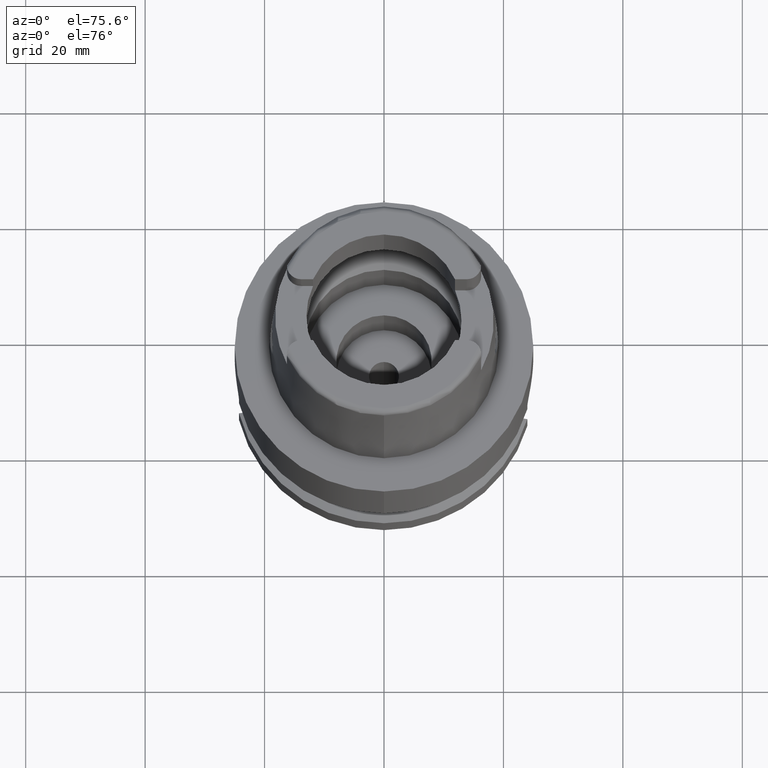
[diagram: clean part render]
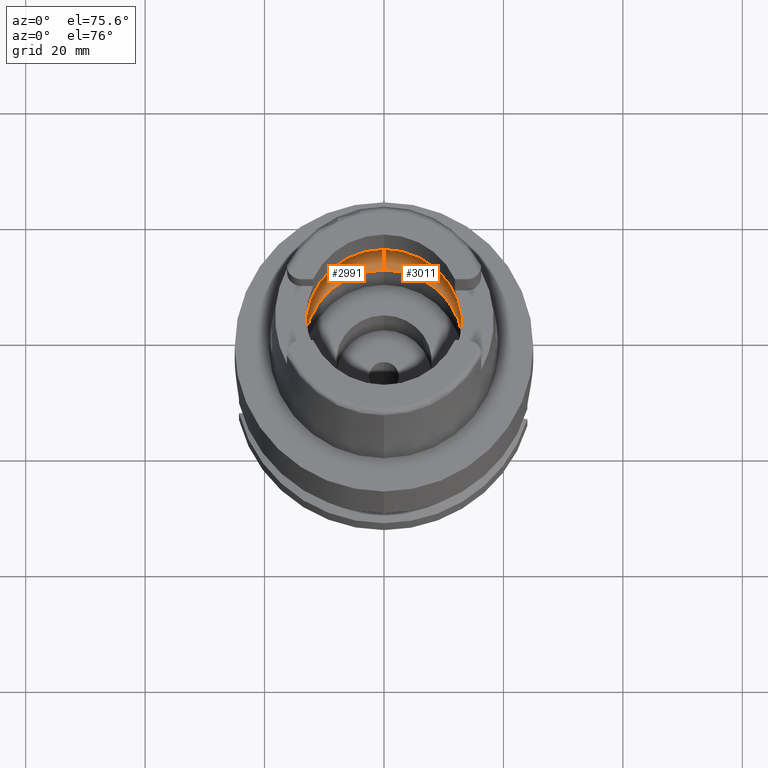
[diagram: same view with one multi-face feature highlighted, each face labeled with its STEP entity id]
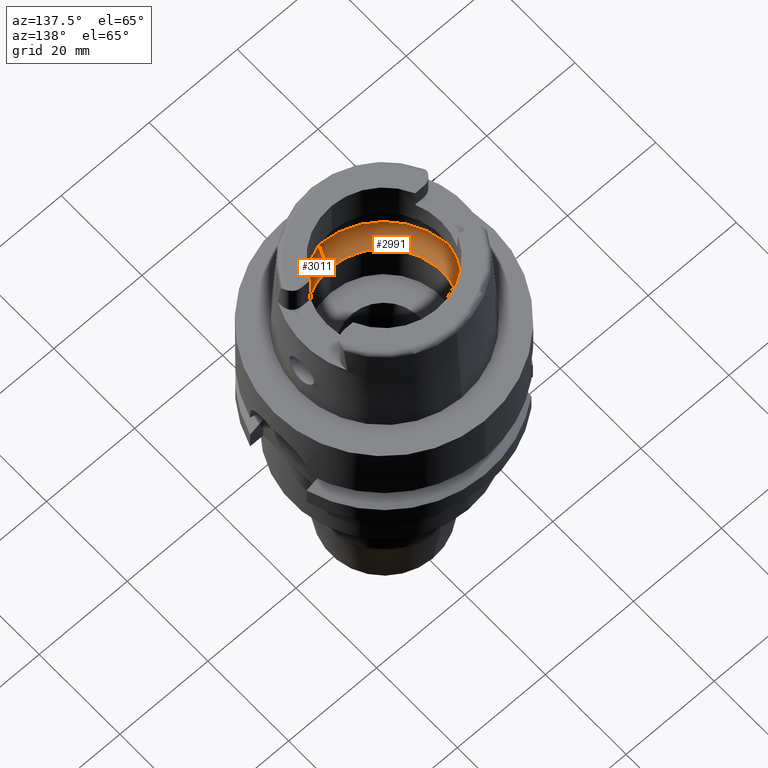
[diagram: same view with one multi-face feature highlighted, each face labeled with its STEP entity id]
A machine part, auxiliary view. The highlighted faces form ONE feature: a constant-radius fillet chain: 2 tangent blend faces with common blend radius 6 mm. The faces share edges in the B-rep.
A second angle (auxiliary view) of the same feature is appended — it is thin or edge-on in the first view.
Their STEP definitions:
[1] entity #2991 (Torus):
#569=CARTESIAN_POINT('',(-1.590436354886E1,-1.746774199933E0,5.060987926547E0));
#612=CARTESIAN_POINT('',(-1.590436354886E1,-1.746774199933E0,5.060987926547E0));
#613=CARTESIAN_POINT('',(-1.592270430230E1,-1.579781803079E0,4.941391138329E0));
#614=CARTESIAN_POINT('',(-1.594971491339E1,-1.219985133517E0,4.735781937568E0));
#615=CARTESIAN_POINT('',(-1.596977328026E1,-6.246457304976E-1,
4.543601441830E0));
#616=CARTESIAN_POINT('',(-1.597371681169E1,-2.085144974671E-1,4.5E0));
#617=CARTESIAN_POINT('',(-1.597371681169E1,0.E0,4.5E0));
#622=CARTESIAN_POINT('',(-1.597371681169E1,0.E0,4.5E0));
#623=CARTESIAN_POINT('',(-1.597371681169E1,2.085174486165E-1,4.5E0));
#624=CARTESIAN_POINT('',(-1.596977315422E1,6.246525164378E-1,4.543602785255E0));
#625=CARTESIAN_POINT('',(-1.594971465828E1,1.219989338210E0,4.735784073710E0));
#626=CARTESIAN_POINT('',(-1.592270412544E1,1.579783413368E0,4.941392291588E0));
#627=CARTESIAN_POINT('',(-1.590436354886E1,1.746774199933E0,5.060987926547E0));
#632=CARTESIAN_POINT('',(0.E0,0.E0,5.060987926547E0));
#633=DIRECTION('',(0.E0,0.E0,-1.E0));
#634=DIRECTION('',(-9.940227218040E-1,1.091733874958E-1,0.E0));
#635=AXIS2_PLACEMENT_3D('',#632,#633,#634);
#640=CARTESIAN_POINT('',(0.E0,0.E0,5.000000000001E-2));
#641=DIRECTION('',(0.E0,0.E0,1.E0));
#642=DIRECTION('',(0.E0,1.E0,0.E0));
#643=AXIS2_PLACEMENT_3D('',#640,#641,#642);
#648=CARTESIAN_POINT('',(0.E0,-1.E1,5.060987926547E0));
#649=DIRECTION('',(-1.E0,0.E0,0.E0));
#650=DIRECTION('',(0.E0,-5.5E-1,-8.351646544245E-1));
#651=AXIS2_PLACEMENT_3D('',#648,#649,#650);
#656=CARTESIAN_POINT('',(0.E0,0.E0,5.060987926547E0));
#657=DIRECTION('',(0.E0,0.E0,-1.E0));
#658=DIRECTION('',(0.E0,-1.E0,0.E0));
#659=AXIS2_PLACEMENT_3D('',#656,#657,#658);
#690=CARTESIAN_POINT('',(0.E0,1.E1,5.060987926547E0));
#691=DIRECTION('',(1.E0,0.E0,0.E0));
#692=DIRECTION('',(0.E0,5.5E-1,-8.351646544245E-1));
#693=AXIS2_PLACEMENT_3D('',#690,#691,#692);
#2352=VERTEX_POINT('',#569);
#2353=CARTESIAN_POINT('',(0.E0,-1.6E1,5.060987926547E0));
#2354=VERTEX_POINT('',#2353);
#2355=CARTESIAN_POINT('',(0.E0,1.6E1,5.060987926547E0));
#2356=VERTEX_POINT('',#2355);
#2357=CARTESIAN_POINT('',(-1.590436354886E1,1.746774199934E0,5.060987926547E0));
#2358=VERTEX_POINT('',#2357);
#2359=CARTESIAN_POINT('',(-1.597371681169E1,0.E0,4.5E0));
#2360=VERTEX_POINT('',#2359);
#2365=CARTESIAN_POINT('',(0.E0,1.33E1,5.000000000001E-2));
#2366=VERTEX_POINT('',#2365);
#2367=CARTESIAN_POINT('',(0.E0,-1.33E1,5.000000000001E-2));
#2368=VERTEX_POINT('',#2367);
#2974=CARTESIAN_POINT('',(0.E0,0.E0,5.060987926547E0));
#2975=DIRECTION('',(0.E0,0.E0,1.E0));
#2976=DIRECTION('',(0.E0,1.E0,0.E0));
#2977=AXIS2_PLACEMENT_3D('',#2974,#2975,#2976);
#2978=TOROIDAL_SURFACE('',#2977,1.E1,6.E0);
#2979=ORIENTED_EDGE('',*,*,#2955,.T.);
#2980=ORIENTED_EDGE('',*,*,#2966,.T.);
#2981=ORIENTED_EDGE('',*,*,#2937,.T.);
#2983=ORIENTED_EDGE('',*,*,#2982,.F.);
#2985=ORIENTED_EDGE('',*,*,#2984,.T.);
#2987=ORIENTED_EDGE('',*,*,#2986,.T.);
#2988=ORIENTED_EDGE('',*,*,#2930,.T.);
#2989=EDGE_LOOP('',(#2979,#2980,#2981,#2983,#2985,#2987,#2988));
#2990=FACE_OUTER_BOUND('',#2989,.F.);
#618=B_SPLINE_CURVE_WITH_KNOTS('',3,(#612,#613,#614,#615,#616,#617),
.UNSPECIFIED.,.F.,.F.,(4,1,1,4),(0.E0,3.333333333333E-1,6.666666666667E-1,1.E0),
.UNSPECIFIED.);
#628=B_SPLINE_CURVE_WITH_KNOTS('',3,(#622,#623,#624,#625,#626,#627),
.UNSPECIFIED.,.F.,.F.,(4,1,1,4),(0.E0,3.333333333333E-1,6.666666666667E-1,1.E0),
.UNSPECIFIED.);
#636=CIRCLE('',#635,1.6E1);
#644=CIRCLE('',#643,1.33E1);
#652=CIRCLE('',#651,6.E0);
#660=CIRCLE('',#659,1.6E1);
#694=CIRCLE('',#693,6.E0);
#2930=EDGE_CURVE('',#2354,#2352,#660,.T.);
#2937=EDGE_CURVE('',#2358,#2356,#636,.T.);
#2955=EDGE_CURVE('',#2352,#2360,#618,.T.);
#2966=EDGE_CURVE('',#2360,#2358,#628,.T.);
#2982=EDGE_CURVE('',#2366,#2356,#694,.T.);
#2984=EDGE_CURVE('',#2366,#2368,#644,.T.);
#2986=EDGE_CURVE('',#2368,#2354,#652,.T.);
#2991=ADVANCED_FACE('',(#2990),#2978,.F.);
[2] entity #3011 (Torus):
#648=CARTESIAN_POINT('',(0.E0,-1.E1,5.060987926547E0));
#649=DIRECTION('',(-1.E0,0.E0,0.E0));
#650=DIRECTION('',(0.E0,-5.5E-1,-8.351646544245E-1));
#651=AXIS2_PLACEMENT_3D('',#648,#649,#650);
#664=CARTESIAN_POINT('',(1.597371681169E1,0.E0,4.5E0));
#665=CARTESIAN_POINT('',(1.597371681169E1,-2.085162539672E-1,4.5E0));
#666=CARTESIAN_POINT('',(1.596977321397E1,-6.246498016926E-1,4.543602178503E0));
#667=CARTESIAN_POINT('',(1.594971470702E1,-1.219988833668E0,4.735783705932E0));
#668=CARTESIAN_POINT('',(1.592270414737E1,-1.579783213733E0,4.941392148613E0));
#669=CARTESIAN_POINT('',(1.590436354886E1,-1.746774199933E0,5.060987926547E0));
#674=CARTESIAN_POINT('',(0.E0,0.E0,5.060987926547E0));
#675=DIRECTION('',(0.E0,0.E0,-1.E0));
#676=DIRECTION('',(9.940227218040E-1,-1.091733874958E-1,0.E0));
#677=AXIS2_PLACEMENT_3D('',#674,#675,#676);
#682=CARTESIAN_POINT('',(0.E0,0.E0,5.000000000001E-2));
#683=DIRECTION('',(0.E0,0.E0,1.E0));
#684=DIRECTION('',(0.E0,-1.E0,0.E0));
#685=AXIS2_PLACEMENT_3D('',#682,#683,#684);
#690=CARTESIAN_POINT('',(0.E0,1.E1,5.060987926547E0));
#691=DIRECTION('',(1.E0,0.E0,0.E0));
#692=DIRECTION('',(0.E0,5.5E-1,-8.351646544245E-1));
#693=AXIS2_PLACEMENT_3D('',#690,#691,#692);
#698=CARTESIAN_POINT('',(0.E0,0.E0,5.060987926547E0));
#699=DIRECTION('',(0.E0,0.E0,-1.E0));
#700=DIRECTION('',(0.E0,1.E0,0.E0));
#701=AXIS2_PLACEMENT_3D('',#698,#699,#700);
#706=CARTESIAN_POINT('',(1.590436354886E1,1.746774199933E0,5.060987926547E0));
#707=CARTESIAN_POINT('',(1.592270428425E1,1.579781967424E0,4.941391256030E0));
#708=CARTESIAN_POINT('',(1.594971486944E1,1.219985545106E0,4.735782263526E0));
#709=CARTESIAN_POINT('',(1.596977322115E1,6.246483873889E-1,4.543602040485E0));
#710=CARTESIAN_POINT('',(1.597371681169E1,2.085156676364E-1,4.5E0));
#711=CARTESIAN_POINT('',(1.597371681169E1,0.E0,4.5E0));
#723=CARTESIAN_POINT('',(1.590436354886E1,-1.746774199933E0,5.060987926547E0));
#752=CARTESIAN_POINT('',(1.590436354886E1,1.746774199933E0,5.060987926547E0));
#2353=CARTESIAN_POINT('',(0.E0,-1.6E1,5.060987926547E0));
#2354=VERTEX_POINT('',#2353);
#2355=CARTESIAN_POINT('',(0.E0,1.6E1,5.060987926547E0));
#2356=VERTEX_POINT('',#2355);
#2361=VERTEX_POINT('',#723);
#2363=VERTEX_POINT('',#664);
#2364=VERTEX_POINT('',#752);
#2365=CARTESIAN_POINT('',(0.E0,1.33E1,5.000000000001E-2));
#2366=VERTEX_POINT('',#2365);
#2367=CARTESIAN_POINT('',(0.E0,-1.33E1,5.000000000001E-2));
#2368=VERTEX_POINT('',#2367);
#2992=CARTESIAN_POINT('',(0.E0,0.E0,5.060987926547E0));
#2993=DIRECTION('',(0.E0,0.E0,1.E0));
#2994=DIRECTION('',(0.E0,1.E0,0.E0));
#2995=AXIS2_PLACEMENT_3D('',#2992,#2993,#2994);
#2996=TOROIDAL_SURFACE('',#2995,1.E1,6.E0);
#2998=ORIENTED_EDGE('',*,*,#2997,.T.);
#3000=ORIENTED_EDGE('',*,*,#2999,.T.);
#3001=ORIENTED_EDGE('',*,*,#2986,.F.);
#3003=ORIENTED_EDGE('',*,*,#3002,.T.);
#3004=ORIENTED_EDGE('',*,*,#2982,.T.);
#3006=ORIENTED_EDGE('',*,*,#3005,.T.);
#3008=ORIENTED_EDGE('',*,*,#3007,.T.);
#3009=EDGE_LOOP('',(#2998,#3000,#3001,#3003,#3004,#3006,#3008));
#3010=FACE_OUTER_BOUND('',#3009,.F.);
#652=CIRCLE('',#651,6.E0);
#670=B_SPLINE_CURVE_WITH_KNOTS('',3,(#664,#665,#666,#667,#668,#669),
.UNSPECIFIED.,.F.,.F.,(4,1,1,4),(0.E0,3.333333333333E-1,6.666666666667E-1,1.E0),
.UNSPECIFIED.);
#678=CIRCLE('',#677,1.6E1);
#686=CIRCLE('',#685,1.33E1);
#694=CIRCLE('',#693,6.E0);
#702=CIRCLE('',#701,1.6E1);
#712=B_SPLINE_CURVE_WITH_KNOTS('',3,(#706,#707,#708,#709,#710,#711),
.UNSPECIFIED.,.F.,.F.,(4,1,1,4),(0.E0,3.333333333333E-1,6.666666666667E-1,1.E0),
.UNSPECIFIED.);
#2982=EDGE_CURVE('',#2366,#2356,#694,.T.);
#2986=EDGE_CURVE('',#2368,#2354,#652,.T.);
#2997=EDGE_CURVE('',#2363,#2361,#670,.T.);
#2999=EDGE_CURVE('',#2361,#2354,#678,.T.);
#3002=EDGE_CURVE('',#2368,#2366,#686,.T.);
#3005=EDGE_CURVE('',#2356,#2364,#702,.T.);
#3007=EDGE_CURVE('',#2364,#2363,#712,.T.);
#3011=ADVANCED_FACE('',(#3010),#2996,.F.);